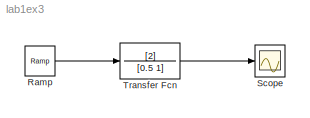
MODEL lab1ex3
KIND model
BLOCK [Reference] Ramp  REF=simulink/Sources/Ramp
  Ports = [0, 1]
  ShowPortLabels = on
  SourceBlock = simulink/Sources/Ramp
  SourceType = Ramp
  VectorParams1D = on
  X0 = 0
  slope = 1
  start = 0
BLOCK [Scope] Scope
  DataFormat = StructureWithTime
  NumInputPorts = 1
  Ports = [1]
  ZoomMode = xonly
BLOCK [TransferFcn] Transfer Fcn
  Denominator = [0.5 1]
  Numerator = [2]
LINE Ramp:1 -> Transfer Fcn:1
LINE Transfer Fcn:1 -> Scope:1
